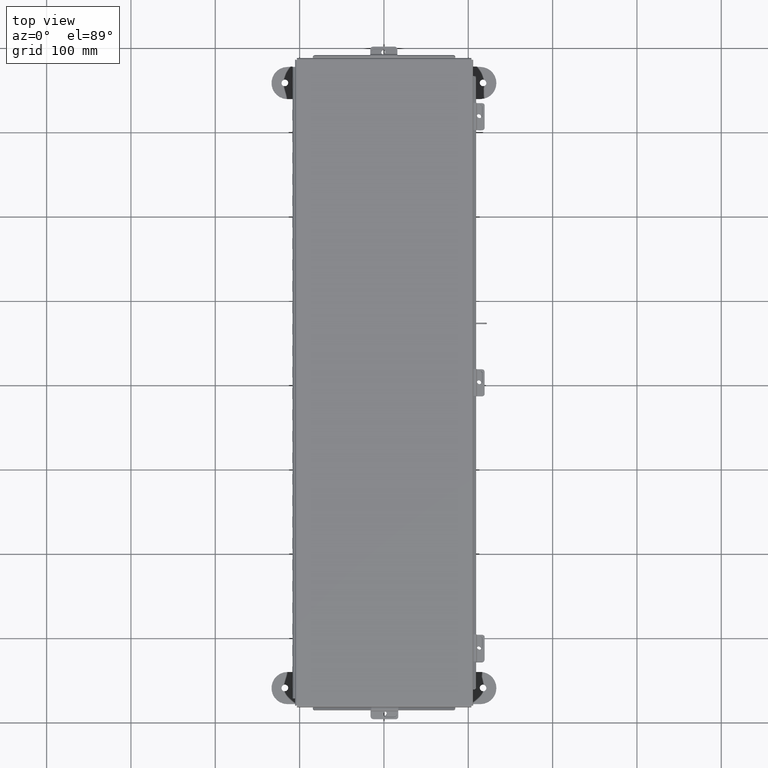
[diagram: clean part render]
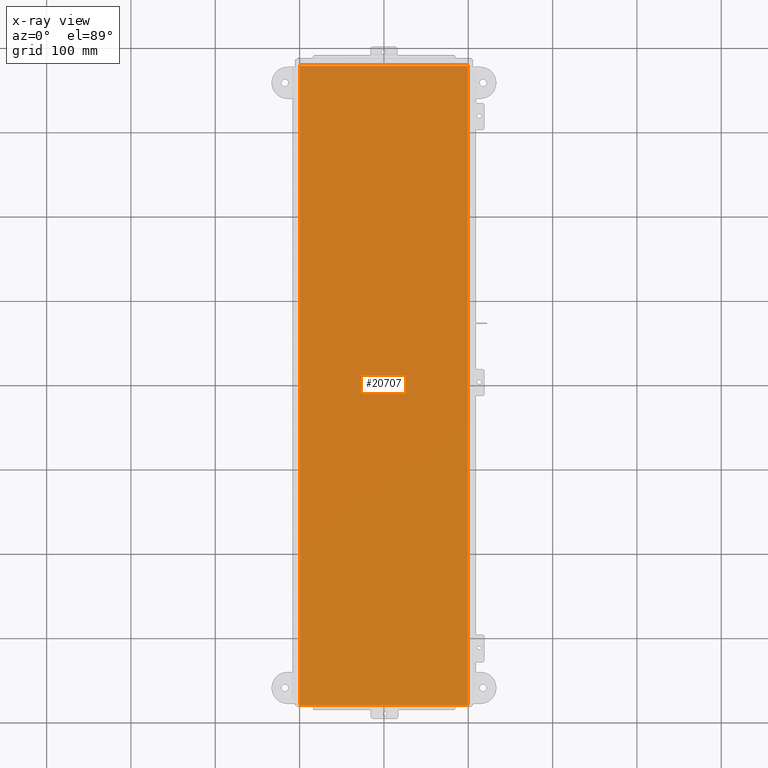
[diagram: x-ray — body ghosted, one internal face saturated and labeled with its STEP entity id]
A machine part, top view, then the same camera in x-ray: the body is ghosted and one INTERNAL B-rep face — a face not visible from any outside direction — is saturated and labeled: STEP entity #20707.
In plain terms, the highlighted planar face has unit normal (0, 0, -1).
Its self-contained STEP definition (entity closure, byte-faithful):
#742 = EDGE_CURVE ( 'NONE', #13784, #23510, #14684, .T. ) ;
#2902 = ORIENTED_EDGE ( 'NONE', *, *, #24185, .T. ) ;
#3310 = VECTOR ( 'NONE', #8879, 39.37007874015748100 ) ;
#3650 = ORIENTED_EDGE ( 'NONE', *, *, #9085, .F. ) ;
#5094 = CARTESIAN_POINT ( 'NONE',  ( 0.0000000000000000000, 0.0000000000000000000, 0.0000000000000000000 ) ) ;
#5555 = LINE ( 'NONE', #15503, #10271 ) ;
#7881 = CARTESIAN_POINT ( 'NONE',  ( 3.912299999999999200, 14.92529999999999800, -5.036844738318485700E-016 ) ) ;
#8049 = EDGE_CURVE ( 'NONE', #13784, #11128, #9236, .T. ) ;
#8451 = ORIENTED_EDGE ( 'NONE', *, *, #8049, .F. ) ;
#8803 = ORIENTED_EDGE ( 'NONE', *, *, #742, .T. ) ;
#8857 = CARTESIAN_POINT ( 'NONE',  ( -3.912300000000000100, 14.92529999999999800, 3.158699242674304400E-016 ) ) ;
#8879 = DIRECTION ( 'NONE',  ( -1.000000000000000000, -0.0000000000000000000, -0.0000000000000000000 ) ) ;
#8989 = CARTESIAN_POINT ( 'NONE',  ( -3.912300000000000100, -14.92530000000000200, 3.158699242674304400E-016 ) ) ;
#9085 = EDGE_CURVE ( 'NONE', #17463, #23510, #12990, .T. ) ;
#9236 = LINE ( 'NONE', #7881, #24122 ) ;
#9903 = DIRECTION ( 'NONE',  ( -0.0000000000000000000, -1.000000000000000000, -0.0000000000000000000 ) ) ;
#10271 = VECTOR ( 'NONE', #23612, 39.37007874015748100 ) ;
#11095 = CARTESIAN_POINT ( 'NONE',  ( -3.912300000000000100, -14.92529999999999800, 3.158699242674304400E-016 ) ) ;
#11128 = VERTEX_POINT ( 'NONE', #17692 ) ;
#11159 = DIRECTION ( 'NONE',  ( 0.0000000000000000000, 0.0000000000000000000, -1.000000000000000000 ) ) ;
#11390 = FACE_OUTER_BOUND ( 'NONE', #20698, .T. ) ;
#11745 = CARTESIAN_POINT ( 'NONE',  ( 3.912299999999999200, 14.92529999999999600, -5.036844738318485700E-016 ) ) ;
#12990 = LINE ( 'NONE', #8989, #13622 ) ;
#13622 = VECTOR ( 'NONE', #21099, 39.37007874015748100 ) ;
#13784 = VERTEX_POINT ( 'NONE', #11745 ) ;
#14684 = LINE ( 'NONE', #20987, #3310 ) ;
#15503 = CARTESIAN_POINT ( 'NONE',  ( -4.000000000000000900, -14.92530000000000200, 0.0000000000000000000 ) ) ;
#17463 = VERTEX_POINT ( 'NONE', #11095 ) ;
#17692 = CARTESIAN_POINT ( 'NONE',  ( 3.912299999999999200, -14.92530000000000200, -5.036844738318485700E-016 ) ) ;
#20698 = EDGE_LOOP ( 'NONE', ( #8451, #8803, #3650, #2902 ) ) ;
#20707 = ADVANCED_FACE ( 'NONE', ( #11390 ), #21248, .F. ) ;
#20987 = CARTESIAN_POINT ( 'NONE',  ( -4.000000000000000900, 14.92529999999999800, 0.0000000000000000000 ) ) ;
#21099 = DIRECTION ( 'NONE',  ( -0.0000000000000000000, 1.000000000000000000, -0.0000000000000000000 ) ) ;
#21248 = PLANE ( 'NONE',  #25576 ) ;
#23510 = VERTEX_POINT ( 'NONE', #8857 ) ;
#23612 = DIRECTION ( 'NONE',  ( 1.000000000000000000, 0.0000000000000000000, 0.0000000000000000000 ) ) ;
#24122 = VECTOR ( 'NONE', #9903, 39.37007874015748100 ) ;
#24185 = EDGE_CURVE ( 'NONE', #17463, #11128, #5555, .T. ) ;
#25326 = DIRECTION ( 'NONE',  ( -1.000000000000000000, 0.0000000000000000000, -0.0000000000000000000 ) ) ;
#25576 = AXIS2_PLACEMENT_3D ( 'NONE', #5094, #11159, #25326 ) ;